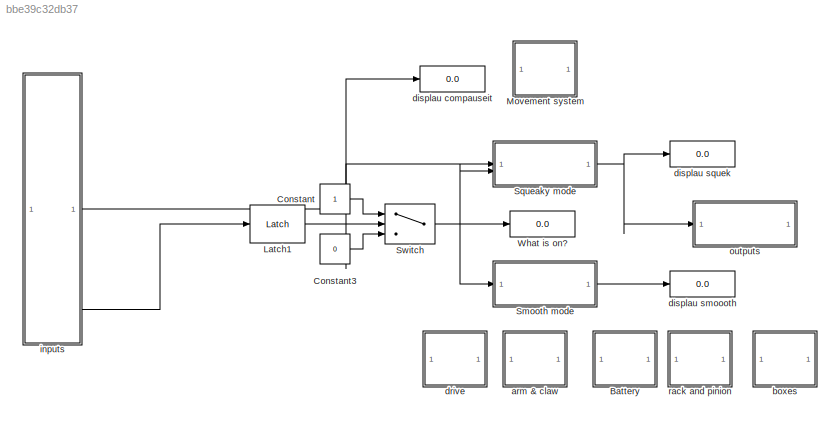
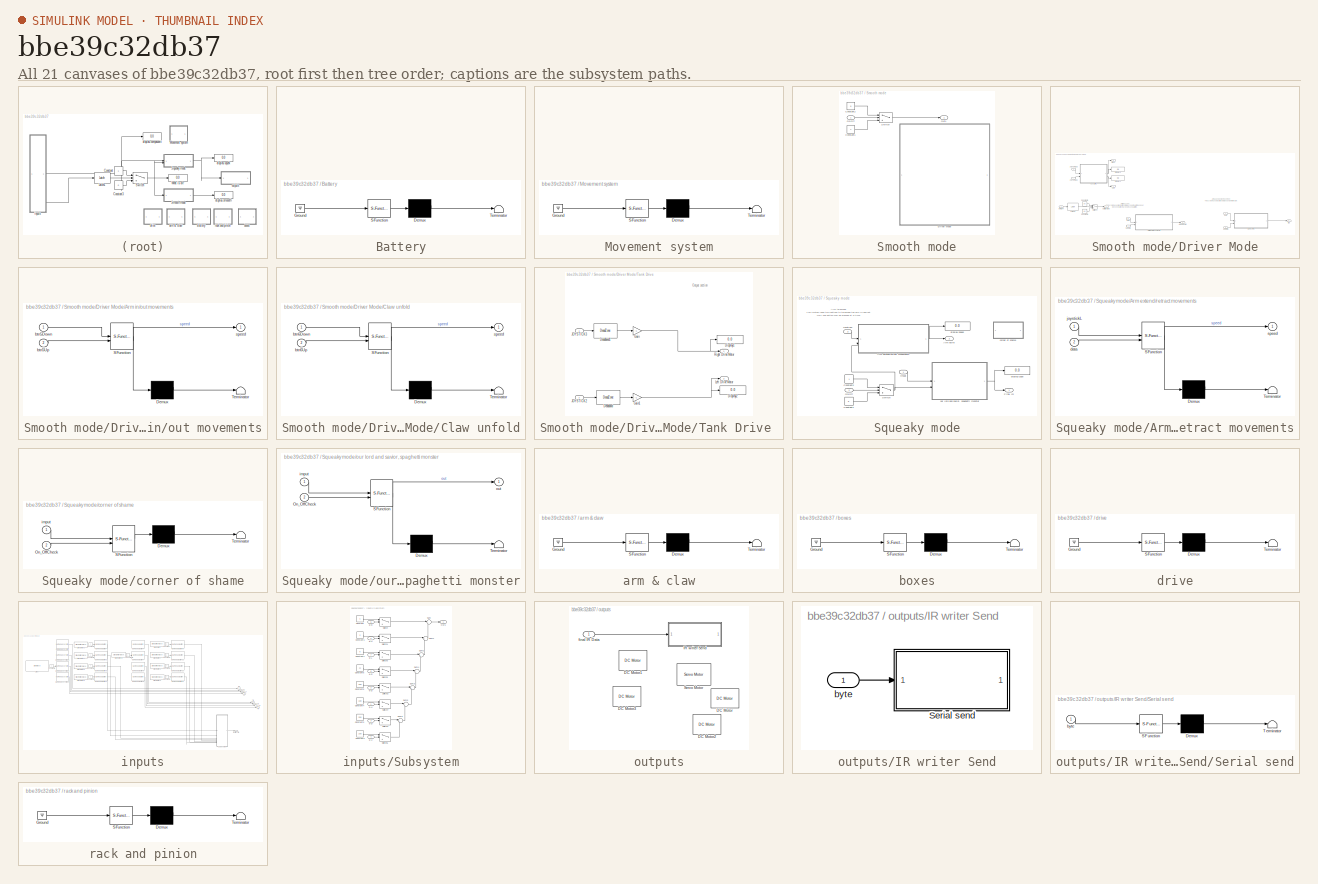
[diagram: thumbnail index - all 21 canvases of the model, root first then tree order]
MODEL slx_bbe39c32db37
KIND model
CONFIG AbsTol = auto
CONFIG EnableMultiTasking = off
CONFIG FixedStep = auto
CONFIG MaxStep = auto
CONFIG MinStep = auto
CONFIG RelTol = 1e-3
CONFIG SampleTimeConstraint = Unconstrained
CONFIG SolverName = VariableStepAuto
CONFIG StartTime = 0.0
CONFIG StopTime = 10.0
BLOCK [SubSystem] Battery
  ErrorFcn = Stateflow.Translate.translate
  PermitHierarchicalResolution = ExplicitOnly
  SFBlockType = Chart
  TreatAsAtomicUnit = on
BLOCK [Demux] Battery/ Demux 
  Outputs = 1
BLOCK [Ground] Battery/ Ground 
BLOCK [S-Function] Battery/ SFunction 
  EnableBusSupport = on
  FunctionName = sf_sfun
  PortCounts = [1 1]
  SFcnIsStateOwnerBlock = off
  SFunctionDeploymentMode = off
  Tag = Stateflow S-Function 7
BLOCK [Terminator] Battery/ Terminator 
BLOCK [Constant] Constant
BLOCK [Constant] Constant3
  Value = 0
BLOCK [Reference] Latch1  REF=RoboticsPlayground/Utilities and Hardware/Latch
  SourceBlock = RoboticsPlayground/Utilities and Hardware/Latch
  SourceProductName = Robotics Playground
BLOCK [SubSystem] Movement system
  ErrorFcn = Stateflow.Translate.translate
  PermitHierarchicalResolution = ExplicitOnly
  SFBlockType = Chart
  TreatAsAtomicUnit = on
BLOCK [Demux] Movement system/ Demux 
  Outputs = 1
BLOCK [Ground] Movement system/ Ground 
BLOCK [S-Function] Movement system/ SFunction 
  EnableBusSupport = on
  FunctionName = sf_sfun
  PortCounts = [1 1]
  SFcnIsStateOwnerBlock = off
  SFunctionDeploymentMode = off
  Tag = Stateflow S-Function 2
BLOCK [Terminator] Movement system/ Terminator 
BLOCK [SubSystem] Smooth mode
BLOCK [Constant] Smooth mode/Constant1
BLOCK [Constant] Smooth mode/Constant2
  Value = 0
BLOCK [SubSystem] Smooth mode/Driver Mode
  TreatAsAtomicUnit = on
BLOCK [Inport] Smooth mode/Driver Mode/5DOWN
  Port = 3
BLOCK [Inport] Smooth mode/Driver Mode/5UP
  Port = 2
BLOCK [Inport] Smooth mode/Driver Mode/6DOWN
  Port = 5
BLOCK [Inport] Smooth mode/Driver Mode/6UP
  Port = 4
BLOCK [Inport] Smooth mode/Driver Mode/8RIGHT
BLOCK [SubSystem] Smooth mode/Driver Mode/Arm in//out movements
  ErrorFcn = Stateflow.Translate.translate
  PermitHierarchicalResolution = ExplicitOnly
  SFBlockType = Chart
  TreatAsAtomicUnit = on
BLOCK [Demux] Smooth mode/Driver Mode/Arm in//out movements/ Demux 
  Outputs = 1
BLOCK [S-Function] Smooth mode/Driver Mode/Arm in//out movements/ SFunction 
  EnableBusSupport = on
  FunctionName = sf_sfun
  PortCounts = [2 2]
  SFcnIsStateOwnerBlock = off
  SFunctionDeploymentMode = off
  Tag = Stateflow S-Function 12
BLOCK [Terminator] Smooth mode/Driver Mode/Arm in//out movements/ Terminator 
BLOCK [Inport] Smooth mode/Driver Mode/Arm in//out movements/btn5Down
BLOCK [Inport] Smooth mode/Driver Mode/Arm in//out movements/btn5Up
  Port = 2
BLOCK [Outport] Smooth mode/Driver Mode/Arm in//out movements/speed
BLOCK [Outport] Smooth mode/Driver Mode/Arm up//down
  Port = 3
BLOCK [SubSystem] Smooth mode/Driver Mode/Claw unfold
  ErrorFcn = Stateflow.Translate.translate
  PermitHierarchicalResolution = ExplicitOnly
  SFBlockType = Chart
  TreatAsAtomicUnit = on
BLOCK [Demux] Smooth mode/Driver Mode/Claw unfold/ Demux 
  Outputs = 1
BLOCK [S-Function] Smooth mode/Driver Mode/Claw unfold/ SFunction 
  EnableBusSupport = on
  FunctionName = sf_sfun
  PortCounts = [2 2]
  SFcnIsStateOwnerBlock = off
  SFunctionDeploymentMode = off
  Tag = Stateflow S-Function 13
BLOCK [Terminator] Smooth mode/Driver Mode/Claw unfold/ Terminator 
BLOCK [Inport] Smooth mode/Driver Mode/Claw unfold/btn6Down
BLOCK [Inport] Smooth mode/Driver Mode/Claw unfold/btn6Up
  Port = 2
BLOCK [Outport] Smooth mode/Driver Mode/Claw unfold/speed
BLOCK [Constant] Smooth mode/Driver Mode/Constant1
  Value = 90
BLOCK [Constant] Smooth mode/Driver Mode/Constant4
  Value = -90
BLOCK [Display] Smooth mode/Driver Mode/Display1
  Decimation = 1
BLOCK [Display] Smooth mode/Driver Mode/Display2
  Decimation = 1
BLOCK [Inport] Smooth mode/Driver Mode/JOYSTICK2
  Port = 7
BLOCK [Inport] Smooth mode/Driver Mode/JOYSTICK3
  Port = 6
BLOCK [Reference] Smooth mode/Driver Mode/Latch1  REF=vexcommonlib/Latch
  SourceBlock = vexcommonlib/Latch
  SourceType = Latch
BLOCK [Outport] Smooth mode/Driver Mode/Left
BLOCK [Outport] Smooth mode/Driver Mode/Right
  Port = 5
BLOCK [Switch] Smooth mode/Driver Mode/Switch4
  InputSameDT = off
  SaturateOnIntegerOverflow = off
  Threshold = 1
BLOCK [SubSystem] Smooth mode/Driver Mode/Tank Drive 
  TreatAsAtomicUnit = on
BLOCK [DeadZone] Smooth mode/Driver Mode/Tank Drive /Deadband
  LowerValue = -9
  UpperValue = 9
BLOCK [DeadZone] Smooth mode/Driver Mode/Tank Drive /Deadband1
  LowerValue = -9
  UpperValue = 9
BLOCK [Display] Smooth mode/Driver Mode/Tank Drive /Display1
  Decimation = 1
BLOCK [Display] Smooth mode/Driver Mode/Tank Drive /Display2
  Decimation = 1
BLOCK [Gain] Smooth mode/Driver Mode/Tank Drive /Gain
  Gain = -1
BLOCK [Gain] Smooth mode/Driver Mode/Tank Drive /Gain1
  Gain = -1
BLOCK [Inport] Smooth mode/Driver Mode/Tank Drive /JOYSTICK2
  Port = 2
BLOCK [Inport] Smooth mode/Driver Mode/Tank Drive /JOYSTICK3
BLOCK [Outport] Smooth mode/Driver Mode/Tank Drive /Left Drive Motor
  Port = 2
BLOCK [Outport] Smooth mode/Driver Mode/Tank Drive /Right Drive Motor
BLOCK [Outport] Smooth mode/Driver Mode/battery drop
  Port = 2
BLOCK [Outport] Smooth mode/Driver Mode/r&p
  Port = 4
BLOCK [Inport] Smooth mode/On//Off
BLOCK [Outport] Smooth mode/Out1
BLOCK [Switch] Smooth mode/Switch
  Criteria = u2 > Threshold
  InputSameDT = off
  SaturateOnIntegerOverflow = off
BLOCK [SubSystem] Squeaky mode
BLOCK [Outport] Squeaky mode/Arm ex//re
  Port = 2
BLOCK [SubSystem] Squeaky mode/Arm extend//retract movements
  ErrorFcn = Stateflow.Translate.translate
  PermitHierarchicalResolution = ExplicitOnly
  SFBlockType = Chart
  TreatAsAtomicUnit = on
BLOCK [Demux] Squeaky mode/Arm extend//retract movements/ Demux 
  Outputs = 1
BLOCK [S-Function] Squeaky mode/Arm extend//retract movements/ SFunction 
  EnableBusSupport = on
  FunctionName = sf_sfun
  PortCounts = [2 2]
  SFcnIsStateOwnerBlock = off
  SFunctionDeploymentMode = off
  Tag = Stateflow S-Function 4
BLOCK [Terminator] Squeaky mode/Arm extend//retract movements/ Terminator 
BLOCK [Inport] Squeaky mode/Arm extend//retract movements/data
  Port = 2
BLOCK [Inport] Squeaky mode/Arm extend//retract movements/joystickL
BLOCK [Outport] Squeaky mode/Arm extend//retract movements/speed
BLOCK [Constant] Squeaky mode/Constant1
  Value = 0
BLOCK [Constant] Squeaky mode/Constant2
BLOCK [Outport] Squeaky mode/Final IR
BLOCK [Inport] Squeaky mode/On//Off
  Port = 2
BLOCK [Switch] Squeaky mode/Switch
  Criteria = u2 > Threshold
  InputSameDT = off
  SaturateOnIntegerOverflow = off
BLOCK [SubSystem] Squeaky mode/corner of shame
  Commented = on
  ErrorFcn = Stateflow.Translate.translate
  PermitHierarchicalResolution = ExplicitOnly
  SFBlockType = Chart
  TreatAsAtomicUnit = on
BLOCK [Demux] Squeaky mode/corner of shame/ Demux 
  Outputs = 1
BLOCK [S-Function] Squeaky mode/corner of shame/ SFunction 
  EnableBusSupport = on
  FunctionName = sf_sfun
  PortCounts = [2 1]
  SFcnIsStateOwnerBlock = off
  SFunctionDeploymentMode = off
  Tag = Stateflow S-Function 10
BLOCK [Terminator] Squeaky mode/corner of shame/ Terminator 
BLOCK [Inport] Squeaky mode/corner of shame/On_OffCheck
  Port = 2
BLOCK [Inport] Squeaky mode/corner of shame/imput
BLOCK [Display] Squeaky mode/displau case
  Decimation = 1
BLOCK [Display] Squeaky mode/displau speed
  Decimation = 1
BLOCK [Inport] Squeaky mode/imput
BLOCK [Inport] Squeaky mode/joystickL
  Port = 3
BLOCK [SubSystem] Squeaky mode/our lord and savior, spaghetti monster
  ErrorFcn = Stateflow.Translate.translate
  PermitHierarchicalResolution = ExplicitOnly
  SFBlockType = Chart
  TreatAsAtomicUnit = on
BLOCK [Demux] Squeaky mode/our lord and savior, spaghetti monster/ Demux 
  Outputs = 1
BLOCK [S-Function] Squeaky mode/our lord and savior, spaghetti monster/ SFunction 
  EnableBusSupport = on
  FunctionName = sf_sfun
  PortCounts = [2 2]
  SFcnIsStateOwnerBlock = off
  SFunctionDeploymentMode = off
  Tag = Stateflow S-Function 1
BLOCK [Terminator] Squeaky mode/our lord and savior, spaghetti monster/ Terminator 
BLOCK [Inport] Squeaky mode/our lord and savior, spaghetti monster/On_OffCheck
  Port = 2
BLOCK [Inport] Squeaky mode/our lord and savior, spaghetti monster/imput
BLOCK [Outport] Squeaky mode/our lord and savior, spaghetti monster/out
BLOCK [Switch] Switch
  Criteria = u2 ~= 0
  InputSameDT = off
  SaturateOnIntegerOverflow = off
BLOCK [Display] What is on?
  Decimation = 1
BLOCK [SubSystem] arm & claw
  ErrorFcn = Stateflow.Translate.translate
  PermitHierarchicalResolution = ExplicitOnly
  SFBlockType = Chart
  TreatAsAtomicUnit = on
BLOCK [Demux] arm & claw/ Demux 
  Outputs = 1
BLOCK [Ground] arm & claw/ Ground 
BLOCK [S-Function] arm & claw/ SFunction 
  EnableBusSupport = on
  FunctionName = sf_sfun
  PortCounts = [1 1]
  SFcnIsStateOwnerBlock = off
  SFunctionDeploymentMode = off
  Tag = Stateflow S-Function 6
BLOCK [Terminator] arm & claw/ Terminator 
BLOCK [SubSystem] boxes
  ErrorFcn = Stateflow.Translate.translate
  PermitHierarchicalResolution = ExplicitOnly
  SFBlockType = Chart
  TreatAsAtomicUnit = on
BLOCK [Demux] boxes/ Demux 
  Outputs = 1
BLOCK [Ground] boxes/ Ground 
BLOCK [S-Function] boxes/ SFunction 
  EnableBusSupport = on
  FunctionName = sf_sfun
  PortCounts = [1 1]
  SFcnIsStateOwnerBlock = off
  SFunctionDeploymentMode = off
  Tag = Stateflow S-Function 9
BLOCK [Terminator] boxes/ Terminator 
BLOCK [Display] displau compauseit
  Decimation = 1
BLOCK [Display] displau smoooth
  Decimation = 1
BLOCK [Display] displau squek
  Decimation = 1
  Format = hex (Stored Integer)
BLOCK [SubSystem] drive
  ErrorFcn = Stateflow.Translate.translate
  PermitHierarchicalResolution = ExplicitOnly
  SFBlockType = Chart
  TreatAsAtomicUnit = on
BLOCK [Demux] drive/ Demux 
  Outputs = 1
BLOCK [Ground] drive/ Ground 
BLOCK [S-Function] drive/ SFunction 
  EnableBusSupport = on
  FunctionName = sf_sfun
  PortCounts = [1 1]
  SFcnIsStateOwnerBlock = off
  SFunctionDeploymentMode = off
  Tag = Stateflow S-Function 5
BLOCK [Terminator] drive/ Terminator 
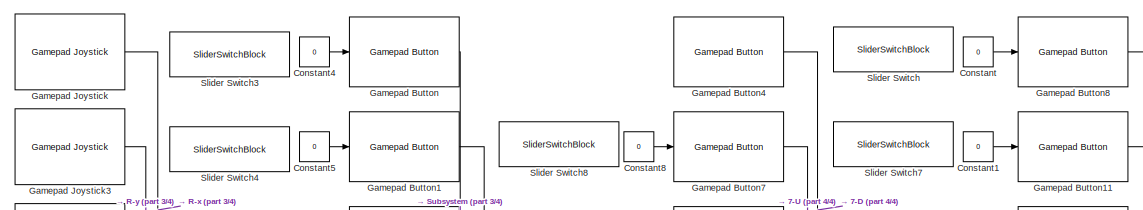
[diagram: inputs - part 1/4, top center region]
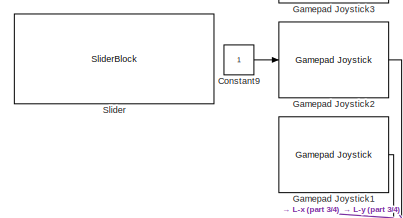
[diagram: inputs - part 2/4, top left region]
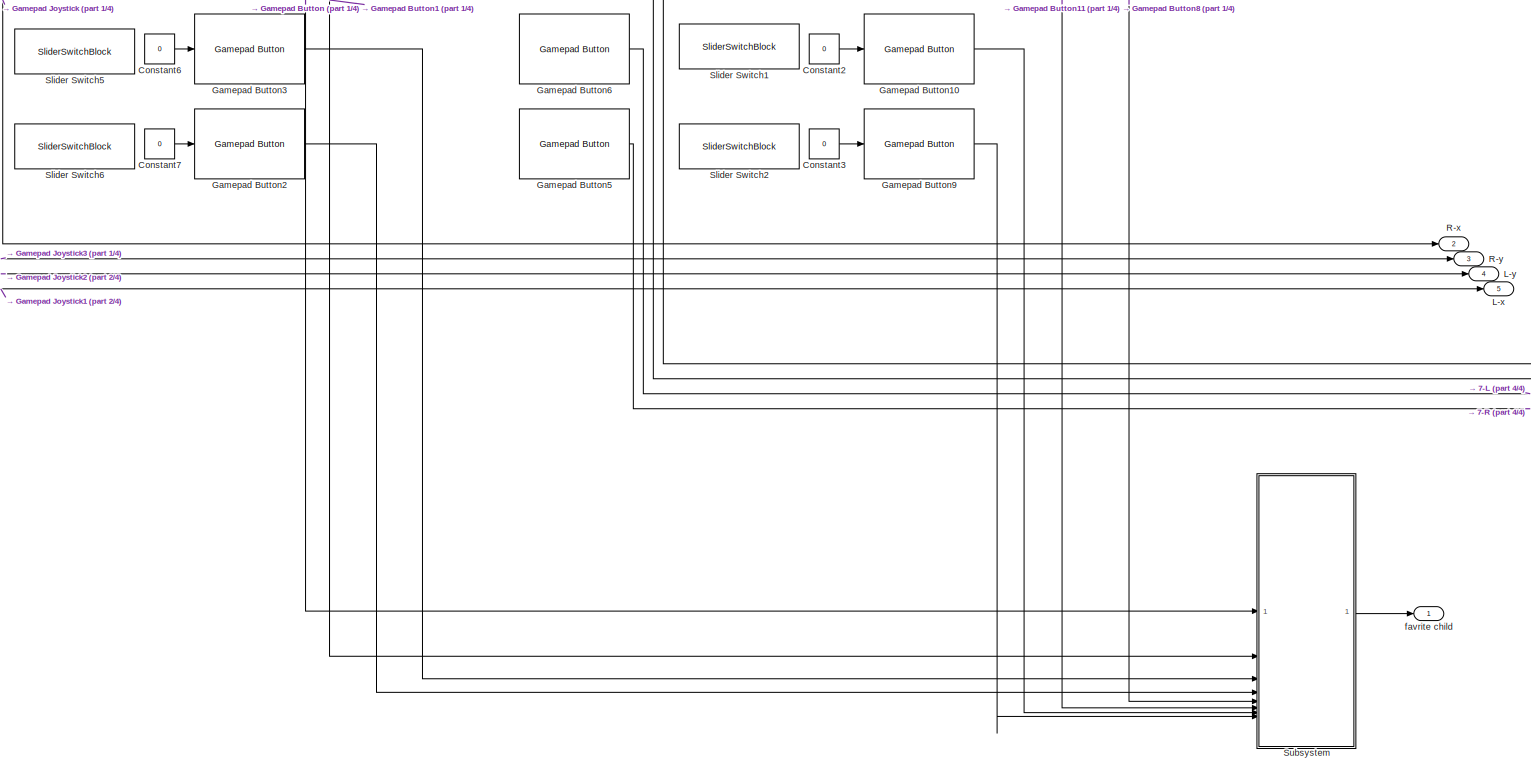
[diagram: inputs - part 3/4, most of the canvas]
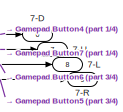
[diagram: inputs - part 4/4, middle right region]
BLOCK [SubSystem] inputs
BLOCK [Outport] inputs/7-D
  Port = 6
BLOCK [Outport] inputs/7-L
  Port = 8
BLOCK [Outport] inputs/7-R
  Port = 9
BLOCK [Outport] inputs/7-U
  Port = 7
BLOCK [Constant] inputs/Constant
  Value = 0
BLOCK [Constant] inputs/Constant1
  Value = 0
BLOCK [Constant] inputs/Constant2
  Value = 0
BLOCK [Constant] inputs/Constant3
  Value = 0
BLOCK [Constant] inputs/Constant4
  Value = 0
BLOCK [Constant] inputs/Constant5
  Value = 0
BLOCK [Constant] inputs/Constant6
  Value = 0
BLOCK [Constant] inputs/Constant7
  Value = 0
BLOCK [Constant] inputs/Constant8
  Value = 0
BLOCK [Constant] inputs/Constant9
BLOCK [Reference] inputs/Gamepad Button  REF=vexarmcortexlib/Gamepad/Gamepad Button
  SourceBlock = vexarmcortexlib/Gamepad/Gamepad Button
  SourceType = Gamepad Button
BLOCK [Reference] inputs/Gamepad Button1  REF=vexarmcortexlib/Gamepad/Gamepad Button
  SourceBlock = vexarmcortexlib/Gamepad/Gamepad Button
  SourceType = Gamepad Button
BLOCK [Reference] inputs/Gamepad Button10  REF=vexarmcortexlib/Gamepad/Gamepad Button
  SourceBlock = vexarmcortexlib/Gamepad/Gamepad Button
  SourceType = Gamepad Button
BLOCK [Reference] inputs/Gamepad Button11  REF=vexarmcortexlib/Gamepad/Gamepad Button
  SourceBlock = vexarmcortexlib/Gamepad/Gamepad Button
  SourceType = Gamepad Button
BLOCK [Reference] inputs/Gamepad Button2  REF=vexarmcortexlib/Gamepad/Gamepad Button
  SourceBlock = vexarmcortexlib/Gamepad/Gamepad Button
  SourceType = Gamepad Button
BLOCK [Reference] inputs/Gamepad Button3  REF=vexarmcortexlib/Gamepad/Gamepad Button
  SourceBlock = vexarmcortexlib/Gamepad/Gamepad Button
  SourceType = Gamepad Button
BLOCK [Reference] inputs/Gamepad Button4  REF=vexarmcortexlib/Gamepad/Gamepad Button
  SourceBlock = vexarmcortexlib/Gamepad/Gamepad Button
  SourceType = Gamepad Button
BLOCK [Reference] inputs/Gamepad Button5  REF=vexarmcortexlib/Gamepad/Gamepad Button
  SourceBlock = vexarmcortexlib/Gamepad/Gamepad Button
  SourceType = Gamepad Button
BLOCK [Reference] inputs/Gamepad Button6  REF=vexarmcortexlib/Gamepad/Gamepad Button
  SourceBlock = vexarmcortexlib/Gamepad/Gamepad Button
  SourceType = Gamepad Button
BLOCK [Reference] inputs/Gamepad Button7  REF=vexarmcortexlib/Gamepad/Gamepad Button
  SourceBlock = vexarmcortexlib/Gamepad/Gamepad Button
  SourceType = Gamepad Button
BLOCK [Reference] inputs/Gamepad Button8  REF=vexarmcortexlib/Gamepad/Gamepad Button
  SourceBlock = vexarmcortexlib/Gamepad/Gamepad Button
  SourceType = Gamepad Button
BLOCK [Reference] inputs/Gamepad Button9  REF=vexarmcortexlib/Gamepad/Gamepad Button
  SourceBlock = vexarmcortexlib/Gamepad/Gamepad Button
  SourceType = Gamepad Button
BLOCK [Reference] inputs/Gamepad Joystick  REF=vexarmcortexlib/Gamepad/Gamepad Joystick
  SourceBlock = vexarmcortexlib/Gamepad/Gamepad Joystick
  SourceType = Gamepad Joystick
BLOCK [Reference] inputs/Gamepad Joystick1  REF=vexarmcortexlib/Gamepad/Gamepad Joystick
  SourceBlock = vexarmcortexlib/Gamepad/Gamepad Joystick
  SourceType = Gamepad Joystick
BLOCK [Reference] inputs/Gamepad Joystick2  REF=vexarmcortexlib/Gamepad/Gamepad Joystick
  SourceBlock = vexarmcortexlib/Gamepad/Gamepad Joystick
  SourceType = Gamepad Joystick
BLOCK [Reference] inputs/Gamepad Joystick3  REF=vexarmcortexlib/Gamepad/Gamepad Joystick
  SourceBlock = vexarmcortexlib/Gamepad/Gamepad Joystick
  SourceType = Gamepad Joystick
BLOCK [Outport] inputs/L-x
  Port = 5
BLOCK [Outport] inputs/L-y
  Port = 4
BLOCK [Outport] inputs/R-x
  Port = 2
BLOCK [Outport] inputs/R-y
  Port = 3
BLOCK [SliderBlock] inputs/Slider
  ScaleMax = 180
  ScaleMin = -180
BLOCK [SliderSwitchBlock] inputs/Slider Switch
BLOCK [SliderSwitchBlock] inputs/Slider Switch1
BLOCK [SliderSwitchBlock] inputs/Slider Switch2
BLOCK [SliderSwitchBlock] inputs/Slider Switch3
BLOCK [SliderSwitchBlock] inputs/Slider Switch4
BLOCK [SliderSwitchBlock] inputs/Slider Switch5
BLOCK [SliderSwitchBlock] inputs/Slider Switch6
BLOCK [SliderSwitchBlock] inputs/Slider Switch7
BLOCK [SliderSwitchBlock] inputs/Slider Switch8
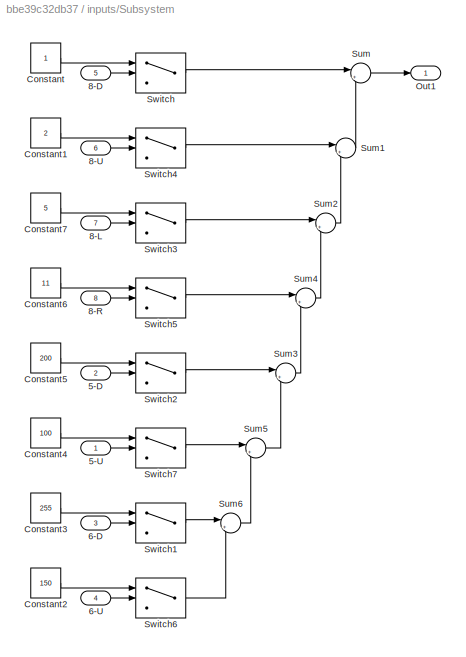
BLOCK [SubSystem] inputs/Subsystem
BLOCK [Inport] inputs/Subsystem/5-D
  Port = 2
BLOCK [Inport] inputs/Subsystem/5-U
BLOCK [Inport] inputs/Subsystem/6-D
  Port = 3
BLOCK [Inport] inputs/Subsystem/6-U
  Port = 4
BLOCK [Inport] inputs/Subsystem/8-D
  Port = 5
BLOCK [Inport] inputs/Subsystem/8-L
  Port = 7
BLOCK [Inport] inputs/Subsystem/8-R
  Port = 8
BLOCK [Inport] inputs/Subsystem/8-U
  Port = 6
BLOCK [Constant] inputs/Subsystem/Constant
BLOCK [Constant] inputs/Subsystem/Constant1
  Value = 2
BLOCK [Constant] inputs/Subsystem/Constant2
  Value = 150
BLOCK [Constant] inputs/Subsystem/Constant3
  Value = 255
BLOCK [Constant] inputs/Subsystem/Constant4
  Value = 100
BLOCK [Constant] inputs/Subsystem/Constant5
  Value = 200
BLOCK [Constant] inputs/Subsystem/Constant6
  Value = 11
BLOCK [Constant] inputs/Subsystem/Constant7
  Value = 5
BLOCK [Outport] inputs/Subsystem/Out1
BLOCK [Sum] inputs/Subsystem/Sum
  Inputs = |++
BLOCK [Sum] inputs/Subsystem/Sum1
  Inputs = |++
BLOCK [Sum] inputs/Subsystem/Sum2
  Inputs = |++
BLOCK [Sum] inputs/Subsystem/Sum3
  Inputs = |++
BLOCK [Sum] inputs/Subsystem/Sum4
  Inputs = |++
BLOCK [Sum] inputs/Subsystem/Sum5
  Inputs = |++
BLOCK [Sum] inputs/Subsystem/Sum6
  Inputs = |++
BLOCK [Switch] inputs/Subsystem/Switch
  Criteria = u2 > Threshold
  InputSameDT = off
  SaturateOnIntegerOverflow = off
BLOCK [Switch] inputs/Subsystem/Switch1
  Criteria = u2 > Threshold
  InputSameDT = off
  SaturateOnIntegerOverflow = off
BLOCK [Switch] inputs/Subsystem/Switch2
  Criteria = u2 > Threshold
  InputSameDT = off
  SaturateOnIntegerOverflow = off
BLOCK [Switch] inputs/Subsystem/Switch3
  Criteria = u2 > Threshold
  InputSameDT = off
  SaturateOnIntegerOverflow = off
BLOCK [Switch] inputs/Subsystem/Switch4
  Criteria = u2 > Threshold
  InputSameDT = off
  SaturateOnIntegerOverflow = off
BLOCK [Switch] inputs/Subsystem/Switch5
  Criteria = u2 > Threshold
  InputSameDT = off
  SaturateOnIntegerOverflow = off
BLOCK [Switch] inputs/Subsystem/Switch6
  Criteria = u2 > Threshold
  InputSameDT = off
  SaturateOnIntegerOverflow = off
BLOCK [Switch] inputs/Subsystem/Switch7
  Criteria = u2 > Threshold
  InputSameDT = off
  SaturateOnIntegerOverflow = off
BLOCK [Outport] inputs/favrite child
BLOCK [SubSystem] outputs
BLOCK [Reference] outputs/DC Motor  REF=vexarmcortexlib/Actuators/DC Motor
  SourceBlock = vexarmcortexlib/Actuators/DC Motor
  SourceType = DC Motor
BLOCK [Reference] outputs/DC Motor1  REF=vexarmcortexlib/Actuators/DC Motor
  SourceBlock = vexarmcortexlib/Actuators/DC Motor
  SourceType = DC Motor
BLOCK [Reference] outputs/DC Motor2  REF=vexarmcortexlib/Actuators/DC Motor
  SourceBlock = vexarmcortexlib/Actuators/DC Motor
  SourceType = DC Motor
BLOCK [Reference] outputs/DC Motor3  REF=vexarmcortexlib/Actuators/DC Motor
  SourceBlock = vexarmcortexlib/Actuators/DC Motor
  SourceType = DC Motor
BLOCK [SubSystem] outputs/IR writer Send
BLOCK [SubSystem] outputs/IR writer Send/Serial send
  ErrorFcn = Stateflow.Translate.translate
  PermitHierarchicalResolution = ExplicitOnly
  SFBlockType = MATLAB Function
  TreatAsAtomicUnit = on
BLOCK [Demux] outputs/IR writer Send/Serial send/ Demux 
  Outputs = 1
BLOCK [S-Function] outputs/IR writer Send/Serial send/ SFunction 
  EnableBusSupport = on
  FunctionName = sf_sfun
  PortCounts = [1 1]
  SFcnIsStateOwnerBlock = off
  SFunctionDeploymentMode = off
  Tag = Stateflow S-Function 3
BLOCK [Terminator] outputs/IR writer Send/Serial send/ Terminator 
BLOCK [Inport] outputs/IR writer Send/Serial send/byte
BLOCK [Inport] outputs/IR writer Send/byte
  OutDataTypeStr = uint8
  PortDimensions = [1 1]
BLOCK [Reference] outputs/Servo Motor  REF=vexarmcortexlib/Actuators/Servo Motor
  SourceBlock = vexarmcortexlib/Actuators/Servo Motor
  SourceType = Servo Motor
BLOCK [Inport] outputs/final IR Data
BLOCK [SubSystem] rack and pinion
  ErrorFcn = Stateflow.Translate.translate
  PermitHierarchicalResolution = ExplicitOnly
  SFBlockType = Chart
  TreatAsAtomicUnit = on
BLOCK [Demux] rack and pinion/ Demux 
  Outputs = 1
BLOCK [Ground] rack and pinion/ Ground 
BLOCK [S-Function] rack and pinion/ SFunction 
  EnableBusSupport = on
  FunctionName = sf_sfun
  PortCounts = [1 1]
  SFcnIsStateOwnerBlock = off
  SFunctionDeploymentMode = off
  Tag = Stateflow S-Function 8
BLOCK [Terminator] rack and pinion/ Terminator 
ANNOTATION Smooth mode/Driver Mode: Tank Mode Uses two joysticks inputs to control the two drive motors. Also uses as a button to toggle the speed limit for fine adjustments.
ANNOTATION Smooth mode/Driver Mode: Arm telescope This system uses two buttons to telescope the arm in and out. Only one button may be pressed at a time.
ANNOTATION Smooth mode/Driver Mode: Arm up and down movement This system uses to buttons to raise and lower the arm.
ANNOTATION Smooth mode/Driver Mode/Tank Drive : Output section
ANNOTATION Squeaky mode: Arm telescope This system uses two buttons to telescope the arm in and out. Only one button may be pressed at a time.
LINE Constant3:1 -> Switch:3
LINE Constant:1 -> Switch:1
LINE Latch1:1 -> Switch:2
LINE Smooth mode/Constant1:1 -> Smooth mode/Switch:3
LINE Smooth mode/Constant2:1 -> Smooth mode/Switch:1
LINE Smooth mode/Driver Mode/5DOWN:1 -> Smooth mode/Driver Mode/Arm in//out movements:2
LINE Smooth mode/Driver Mode/5UP:1 -> Smooth mode/Driver Mode/Arm in//out movements:1
LINE Smooth mode/Driver Mode/6DOWN:1 -> Smooth mode/Driver Mode/Claw unfold:2
LINE Smooth mode/Driver Mode/6UP:1 -> Smooth mode/Driver Mode/Claw unfold:1
LINE Smooth mode/Driver Mode/8RIGHT:1 -> Smooth mode/Driver Mode/Latch1:1
LINE Smooth mode/Driver Mode/Arm in//out movements:1 -> Smooth mode/Driver Mode/Arm up//down:1
LINE Smooth mode/Driver Mode/Claw unfold:1 -> Smooth mode/Driver Mode/r&p:1
LINE Smooth mode/Driver Mode/Constant1:1 -> Smooth mode/Driver Mode/Switch4:1
LINE Smooth mode/Driver Mode/Constant4:1 -> Smooth mode/Driver Mode/Switch4:3
LINE Smooth mode/Driver Mode/JOYSTICK2:1 -> Smooth mode/Driver Mode/Tank Drive :2
LINE Smooth mode/Driver Mode/JOYSTICK3:1 -> Smooth mode/Driver Mode/Tank Drive :1
LINE Smooth mode/Driver Mode/Latch1:1 -> Smooth mode/Driver Mode/Switch4:2
LINE Smooth mode/Driver Mode/Switch4:1 -> Smooth mode/Driver Mode/battery drop:1
LINE Smooth mode/Driver Mode/Tank Drive /Deadband1:1 -> Smooth mode/Driver Mode/Tank Drive /Gain:1
LINE Smooth mode/Driver Mode/Tank Drive /Deadband:1 -> Smooth mode/Driver Mode/Tank Drive /Gain1:1
NET Smooth mode/Driver Mode/Tank Drive /Gain1:1 -> Smooth mode/Driver Mode/Tank Drive /Display2:1, Smooth mode/Driver Mode/Tank Drive /Left Drive Motor:1
NET Smooth mode/Driver Mode/Tank Drive /Gain:1 -> Smooth mode/Driver Mode/Tank Drive /Display1:1, Smooth mode/Driver Mode/Tank Drive /Right Drive Motor:1
LINE Smooth mode/Driver Mode/Tank Drive /JOYSTICK2:1 -> Smooth mode/Driver Mode/Tank Drive /Deadband:1
LINE Smooth mode/Driver Mode/Tank Drive /JOYSTICK3:1 -> Smooth mode/Driver Mode/Tank Drive /Deadband1:1
NET Smooth mode/Driver Mode/Tank Drive :1 -> Smooth mode/Driver Mode/Display2:1, Smooth mode/Driver Mode/Right:1
NET Smooth mode/Driver Mode/Tank Drive :2 -> Smooth mode/Driver Mode/Display1:1, Smooth mode/Driver Mode/Left:1
LINE Smooth mode/On//Off:1 -> Smooth mode/Switch:2
LINE Smooth mode/Switch:1 -> Smooth mode/Out1:1
LINE Smooth mode:1 -> displau smoooth:1
NET Squeaky mode/Arm extend//retract movements:1 -> Squeaky mode/Arm ex//re:1, Squeaky mode/displau speed:1
LINE Squeaky mode/Constant1:1 -> Squeaky mode/Switch:3
LINE Squeaky mode/Constant2:1 -> Squeaky mode/Switch:1
LINE Squeaky mode/On//Off:1 -> Squeaky mode/Switch:2
NET Squeaky mode/Switch:1 -> Squeaky mode/Arm extend//retract movements:2, Squeaky mode/our lord and savior, spaghetti monster:2
LINE Squeaky mode/imput:1 -> Squeaky mode/our lord and savior, spaghetti monster:1
LINE Squeaky mode/joystickL:1 -> Squeaky mode/Arm extend//retract movements:1
NET Squeaky mode/our lord and savior, spaghetti monster:1 -> Squeaky mode/Final IR:1, Squeaky mode/displau case:1
NET Squeaky mode:1 -> displau squek:1, outputs:1
NET Switch:1 -> Smooth mode:1, Squeaky mode:2, What is on?:1
LINE inputs/Constant1:1 -> inputs/Gamepad Button11:1
LINE inputs/Constant2:1 -> inputs/Gamepad Button10:1
LINE inputs/Constant3:1 -> inputs/Gamepad Button9:1
LINE inputs/Constant4:1 -> inputs/Gamepad Button:1
LINE inputs/Constant5:1 -> inputs/Gamepad Button1:1
LINE inputs/Constant6:1 -> inputs/Gamepad Button3:1
LINE inputs/Constant7:1 -> inputs/Gamepad Button2:1
LINE inputs/Constant8:1 -> inputs/Gamepad Button7:1
LINE inputs/Constant9:1 -> inputs/Gamepad Joystick2:1
LINE inputs/Constant:1 -> inputs/Gamepad Button8:1
LINE inputs/Gamepad Button10:1 -> inputs/Subsystem:7
LINE inputs/Gamepad Button11:1 -> inputs/Subsystem:6
LINE inputs/Gamepad Button1:1 -> inputs/Subsystem:2
LINE inputs/Gamepad Button2:1 -> inputs/Subsystem:4
LINE inputs/Gamepad Button3:1 -> inputs/Subsystem:3
LINE inputs/Gamepad Button4:1 -> inputs/7-D:1
LINE inputs/Gamepad Button5:1 -> inputs/7-R:1
LINE inputs/Gamepad Button6:1 -> inputs/7-L:1
LINE inputs/Gamepad Button7:1 -> inputs/7-U:1
LINE inputs/Gamepad Button8:1 -> inputs/Subsystem:5
LINE inputs/Gamepad Button9:1 -> inputs/Subsystem:8
LINE inputs/Gamepad Button:1 -> inputs/Subsystem:1
LINE inputs/Gamepad Joystick1:1 -> inputs/L-x:1
LINE inputs/Gamepad Joystick2:1 -> inputs/L-y:1
LINE inputs/Gamepad Joystick3:1 -> inputs/R-y:1
LINE inputs/Gamepad Joystick:1 -> inputs/R-x:1
LINE inputs/Subsystem/5-D:1 -> inputs/Subsystem/Switch2:2
LINE inputs/Subsystem/5-U:1 -> inputs/Subsystem/Switch7:2
LINE inputs/Subsystem/6-D:1 -> inputs/Subsystem/Switch1:2
LINE inputs/Subsystem/6-U:1 -> inputs/Subsystem/Switch6:2
LINE inputs/Subsystem/8-D:1 -> inputs/Subsystem/Switch:2
LINE inputs/Subsystem/8-L:1 -> inputs/Subsystem/Switch3:2
LINE inputs/Subsystem/8-R:1 -> inputs/Subsystem/Switch5:2
LINE inputs/Subsystem/8-U:1 -> inputs/Subsystem/Switch4:2
LINE inputs/Subsystem/Constant1:1 -> inputs/Subsystem/Switch4:1
LINE inputs/Subsystem/Constant2:1 -> inputs/Subsystem/Switch6:1
LINE inputs/Subsystem/Constant3:1 -> inputs/Subsystem/Switch1:1
LINE inputs/Subsystem/Constant4:1 -> inputs/Subsystem/Switch7:1
LINE inputs/Subsystem/Constant5:1 -> inputs/Subsystem/Switch2:1
LINE inputs/Subsystem/Constant6:1 -> inputs/Subsystem/Switch5:1
LINE inputs/Subsystem/Constant7:1 -> inputs/Subsystem/Switch3:1
LINE inputs/Subsystem/Constant:1 -> inputs/Subsystem/Switch:1
LINE inputs/Subsystem/Sum1:1 -> inputs/Subsystem/Sum:2
LINE inputs/Subsystem/Sum2:1 -> inputs/Subsystem/Sum1:2
LINE inputs/Subsystem/Sum3:1 -> inputs/Subsystem/Sum4:2
LINE inputs/Subsystem/Sum4:1 -> inputs/Subsystem/Sum2:2
LINE inputs/Subsystem/Sum5:1 -> inputs/Subsystem/Sum3:2
LINE inputs/Subsystem/Sum6:1 -> inputs/Subsystem/Sum5:2
LINE inputs/Subsystem/Sum:1 -> inputs/Subsystem/Out1:1
LINE inputs/Subsystem/Switch1:1 -> inputs/Subsystem/Sum6:1
LINE inputs/Subsystem/Switch2:1 -> inputs/Subsystem/Sum3:1
LINE inputs/Subsystem/Switch3:1 -> inputs/Subsystem/Sum2:1
LINE inputs/Subsystem/Switch4:1 -> inputs/Subsystem/Sum1:1
LINE inputs/Subsystem/Switch5:1 -> inputs/Subsystem/Sum4:1
LINE inputs/Subsystem/Switch6:1 -> inputs/Subsystem/Sum6:2
LINE inputs/Subsystem/Switch7:1 -> inputs/Subsystem/Sum5:1
LINE inputs/Subsystem/Switch:1 -> inputs/Subsystem/Sum:1
LINE inputs/Subsystem:1 -> inputs/favrite child:1
NET inputs:1 -> Squeaky mode:1, displau compauseit:1
LINE inputs:7 -> Latch1:1
LINE outputs/IR writer Send/byte:1 -> outputs/IR writer Send/Serial send:1
LINE outputs/final IR Data:1 -> outputs/IR writer Send:1
note: NET lines group one-source signal fan-out (src -> all destinations, sorted); 1:1 wires keep LINE
CHART drive states=0 transitions=0
CHART arm & claw states=0 transitions=0
CHART Battery states=0 transitions=0
CHART rack and pinion states=0 transitions=0
CHART boxes states=0 transitions=0
CHART Squeaky mode/corner of shame states=5 transitions=9
  STATE_LABEL 'Test\nfinalData = 0xF0;\nimput = 0;'
  STATE_LABEL 'CenterD\nfinalData  = 0x66;\nimput = 0;'
  STATE_LABEL 'Initialize\nfinalData =0x00;\n'
  STATE_LABEL 'CenterR\nfinalData = 0xCC;\nimput = 0;'
  STATE_LABEL 'CenterL\nfinalData = 0x5A;\nimput = 0;'
CHART Smooth mode/Driver Mode/Arm in//out movements states=3 transitions=7
  STATE_LABEL 'ARMDOWN\nentry:\nspeed = -80;'
  STATE_LABEL 'STOPPED\nentry:\nspeed = 0;'
  STATE_LABEL 'ARMUP\nentry:\nspeed = 80;'
CHART Smooth mode/Driver Mode/Claw unfold states=3 transitions=7
  STATE_LABEL 'ARMDOWN\nentry:\nspeed = -50;'
  STATE_LABEL 'STOPPED\nentry:\nspeed = 0;'
  STATE_LABEL 'ARMUP\nentry:\nspeed = 140;'
CHART Squeaky mode/our lord and savior, spaghetti monster states=14 transitions=20
  STATE_LABEL 'Speed Adjustments'
  STATE_LABEL 'nyoomHigh\nentry:\nout = 0xC3;'
  STATE_LABEL 'nyoomLow\nentry:\nout = 0x99;'
  STATE_LABEL 'nyoomMed\nentry:\nout = 0xA5;'
  STATE_LABEL 'nyoomHigh\nentry:\nout = 0xC3;'
  STATE_LABEL 'nyoomLow\nentry:\nout = 0x99;'
  STATE_LABEL 'nyoomMed\nentry:\nout = 0xA5;'
  STATE_LABEL 'onOff'
  STATE_LABEL 'Squeaky Movements'
  STATE_LABEL 'lift_2\nentry:\nout = 0x5A;\n'
  STATE_LABEL 'drive_2\nentry:\nout = 0x3C;'
  STATE_LABEL 'rotate_2\nentry:\nout = 0x33;'
  STATE_LABEL 'lift_2\nentry:\nout = 0x5A;\n'
  STATE_LABEL 'drive_2\nentry:\nout = 0x3C;'
  STATE_LABEL 'rotate_2\nentry:\nout = 0x33;'
  STATE_LABEL 'irTestDefault\nentry:\nout = 0xF0;\n'
  STATE_LABEL 'Rotational Adjustments'
  STATE_LABEL 'spinspinHigh\nentry:\nout = 0x0F;'
  STATE_LABEL 'spinspinLow\nentry:\nout = 0x69;'
  STATE_LABEL 'spinspinMed\nentry:\nout = 0x96;'
  STATE_LABEL 'spinspinHigh\nentry:\nout = 0x0F;'
  STATE_LABEL 'spinspinLow\nentry:\nout = 0x69;'
  STATE_LABEL 'spinspinMed\nentry:\nout = 0x96;'
CHART Movement system states=0 transitions=0
CHART outputs/IR writer Send/Serial send states=1 transitions=1
  STATE_LABEL 'eML_blk_kernel()'
  STATE_LABEL "SCRIPT:\nfunction fcn(byte)\n% Serial send single byte\n%#codegen\n\n% Config\nport = 'uart1';\nbaud = uint32(9600);\n\npersistent isFirstRun\n\nif coder.target('Rtw')\n    coder.cinclude('API.h');\n    coder.cinclude('string.h');\n    file = coder.opaque('FILE *', port,'HeaderFile','API.h');\n\n    if isempty(isFirstRun)\n        % first time setup\n        isFirstRun = false;\n\n        flags = coder.opaque('uint16...<+127ch>"
CHART Squeaky mode/Arm extend//retract movements states=3 transitions=5
  STATE_LABEL 'armExtend\nentry:\nspeed = 80;'
  STATE_LABEL 'noArm\nentry:\nspeed = 0;'
  STATE_LABEL 'armRetract\nentry:\nspeed = -80;'
CHART  states=0 transitions=0
CHART  states=0 transitions=0
CHART  states=0 transitions=0
CHART  states=0 transitions=0
CHART  states=0 transitions=0
CHART  states=0 transitions=0
CHART  states=0 transitions=0
CHART  states=0 transitions=0
CHART  states=0 transitions=0
CHART  states=0 transitions=0
CHART  states=0 transitions=0
CHART  states=0 transitions=0
